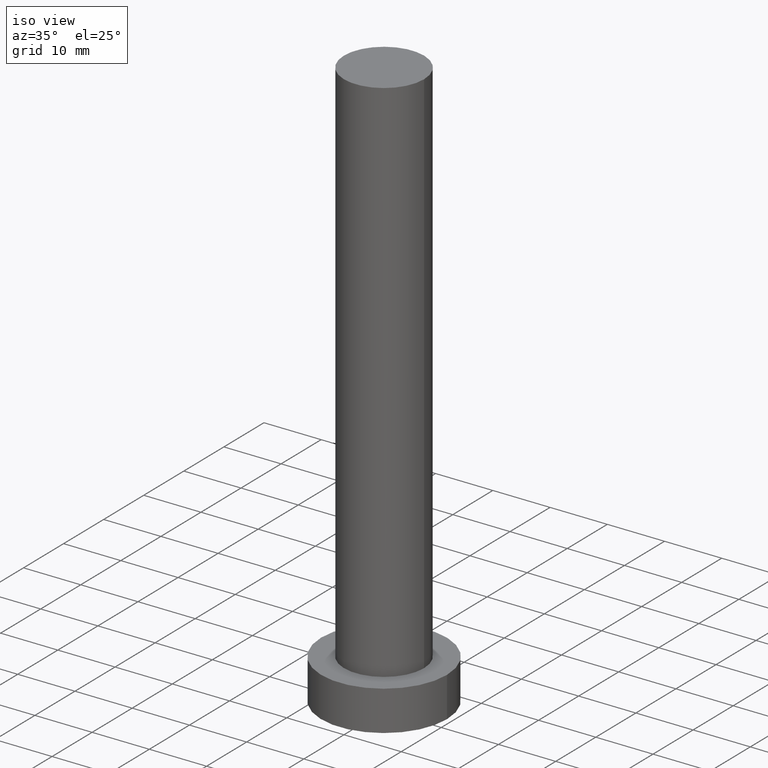
[diagram: clean part render]
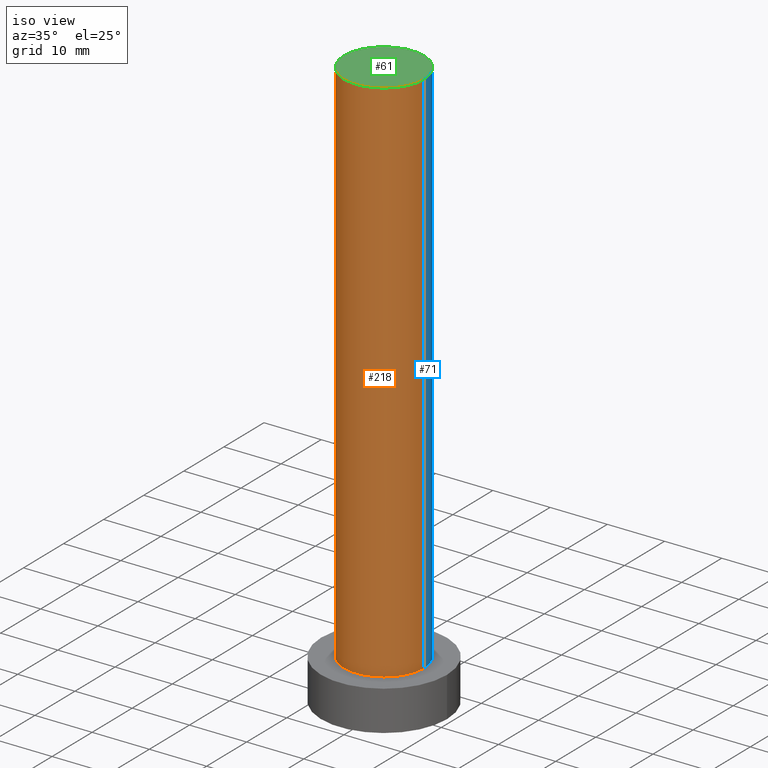
[diagram: same view with three faces highlighted in distinct colors, each labeled with its STEP entity id]
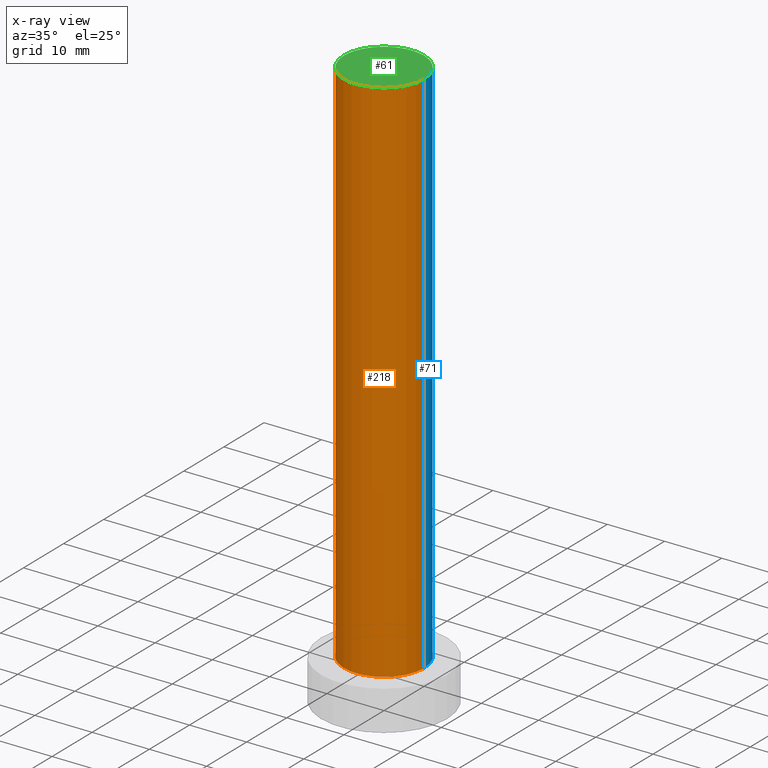
[diagram: x-ray of the same camera — body ghosted, the three highlighted faces saturated]
A machine part, iso view with three faces highlighted in distinct colors.
The next image is the same camera in x-ray (body ghosted, the three faces saturated) — at least one of them is partly hidden behind the body in this view.
Their STEP definitions:

[orange] entity #218 — the highlighted cylindrical surface (partial cylindrical patch) has radius 7 mm, axis along (-0, -0, -1).
#8 = CIRCLE ( 'NONE', #152, 7.000000000000000888 ) ;
#20 = CARTESIAN_POINT ( 'NONE',  ( 7.000000000000000888, 8.572527594031472204E-16, 100.0000000000000000 ) ) ;
#23 = AXIS2_PLACEMENT_3D ( 'NONE', #212, #37, #120 ) ;
#26 = VERTEX_POINT ( 'NONE', #190 ) ;
#33 = DIRECTION ( 'NONE',  ( -0.000000000000000000, -0.000000000000000000, -1.000000000000000000 ) ) ;
#37 = DIRECTION ( 'NONE',  ( -0.000000000000000000, -0.000000000000000000, -1.000000000000000000 ) ) ;
#49 = VERTEX_POINT ( 'NONE', #191 ) ;
#53 = AXIS2_PLACEMENT_3D ( 'NONE', #211, #73, #232 ) ;
#55 = LINE ( 'NONE', #206, #111 ) ;
#66 = VERTEX_POINT ( 'NONE', #142 ) ;
#73 = DIRECTION ( 'NONE',  ( 0.000000000000000000, 0.000000000000000000, 1.000000000000000000 ) ) ;
#78 = VECTOR ( 'NONE', #117, 1000.000000000000000 ) ;
#90 = EDGE_CURVE ( 'NONE', #66, #205, #207, .T. ) ;
#108 = EDGE_CURVE ( 'NONE', #205, #26, #155, .T. ) ;
#111 = VECTOR ( 'NONE', #33, 1000.000000000000000 ) ;
#117 = DIRECTION ( 'NONE',  ( -0.000000000000000000, -0.000000000000000000, -1.000000000000000000 ) ) ;
#119 = CARTESIAN_POINT ( 'NONE',  ( 7.000000000000000888, 8.572527594031472204E-16, 100.0000000000000000 ) ) ;
#120 = DIRECTION ( 'NONE',  ( -1.000000000000000000, 0.000000000000000000, 0.000000000000000000 ) ) ;
#122 = EDGE_CURVE ( 'NONE', #49, #26, #8, .T. ) ;
#125 = ORIENTED_EDGE ( 'NONE', *, *, #90, .F. ) ;
#130 = ORIENTED_EDGE ( 'NONE', *, *, #122, .T. ) ;
#131 = CARTESIAN_POINT ( 'NONE',  ( 0.000000000000000000, 0.000000000000000000, 7.000000000000000000 ) ) ;
#142 = CARTESIAN_POINT ( 'NONE',  ( -7.000000000000000888, 0.000000000000000000, 100.0000000000000000 ) ) ;
#152 = AXIS2_PLACEMENT_3D ( 'NONE', #131, #251, #204 ) ;
#153 = ORIENTED_EDGE ( 'NONE', *, *, #108, .F. ) ;
#155 = LINE ( 'NONE', #119, #78 ) ;
#158 = EDGE_CURVE ( 'NONE', #66, #49, #55, .T. ) ;
#177 = FACE_OUTER_BOUND ( 'NONE', #230, .T. ) ;
#190 = CARTESIAN_POINT ( 'NONE',  ( 7.000000000000000888, 8.572527594031472204E-16, 7.000000000000000000 ) ) ;
#191 = CARTESIAN_POINT ( 'NONE',  ( -7.000000000000000888, 0.000000000000000000, 7.000000000000000000 ) ) ;
#204 = DIRECTION ( 'NONE',  ( 1.000000000000000000, 0.000000000000000000, 0.000000000000000000 ) ) ;
#205 = VERTEX_POINT ( 'NONE', #20 ) ;
#206 = CARTESIAN_POINT ( 'NONE',  ( -7.000000000000000888, 0.000000000000000000, 100.0000000000000000 ) ) ;
#207 = CIRCLE ( 'NONE', #53, 7.000000000000000888 ) ;
#211 = CARTESIAN_POINT ( 'NONE',  ( 0.000000000000000000, 0.000000000000000000, 100.0000000000000000 ) ) ;
#212 = CARTESIAN_POINT ( 'NONE',  ( 0.000000000000000000, 0.000000000000000000, 100.0000000000000000 ) ) ;
#218 = ADVANCED_FACE ( 'NONE', ( #177 ), #235, .T. ) ;
#228 = ORIENTED_EDGE ( 'NONE', *, *, #158, .T. ) ;
#230 = EDGE_LOOP ( 'NONE', ( #153, #125, #228, #130 ) ) ;
#232 = DIRECTION ( 'NONE',  ( 1.000000000000000000, 0.000000000000000000, 0.000000000000000000 ) ) ;
#235 = CYLINDRICAL_SURFACE ( 'NONE', #23, 7.000000000000000888 ) ;
#251 = DIRECTION ( 'NONE',  ( 0.000000000000000000, 0.000000000000000000, 1.000000000000000000 ) ) ;

[blue] entity #71 — the highlighted cylindrical surface (partial cylindrical patch) has radius 7 mm, axis along (-0, -0, -1).
#4 = AXIS2_PLACEMENT_3D ( 'NONE', #173, #196, #80 ) ;
#6 = FACE_OUTER_BOUND ( 'NONE', #187, .T. ) ;
#10 = DIRECTION ( 'NONE',  ( 1.000000000000000000, 0.000000000000000000, 0.000000000000000000 ) ) ;
#18 = AXIS2_PLACEMENT_3D ( 'NONE', #42, #59, #197 ) ;
#19 = EDGE_CURVE ( 'NONE', #26, #49, #148, .T. ) ;
#20 = CARTESIAN_POINT ( 'NONE',  ( 7.000000000000000888, 8.572527594031472204E-16, 100.0000000000000000 ) ) ;
#26 = VERTEX_POINT ( 'NONE', #190 ) ;
#31 = ORIENTED_EDGE ( 'NONE', *, *, #158, .F. ) ;
#33 = DIRECTION ( 'NONE',  ( -0.000000000000000000, -0.000000000000000000, -1.000000000000000000 ) ) ;
#42 = CARTESIAN_POINT ( 'NONE',  ( 0.000000000000000000, 0.000000000000000000, 100.0000000000000000 ) ) ;
#49 = VERTEX_POINT ( 'NONE', #191 ) ;
#50 = CARTESIAN_POINT ( 'NONE',  ( 0.000000000000000000, 0.000000000000000000, 7.000000000000000000 ) ) ;
#55 = LINE ( 'NONE', #206, #111 ) ;
#59 = DIRECTION ( 'NONE',  ( -0.000000000000000000, -0.000000000000000000, -1.000000000000000000 ) ) ;
#66 = VERTEX_POINT ( 'NONE', #142 ) ;
#71 = ADVANCED_FACE ( 'NONE', ( #6 ), #216, .T. ) ;
#74 = ORIENTED_EDGE ( 'NONE', *, *, #19, .T. ) ;
#78 = VECTOR ( 'NONE', #117, 1000.000000000000000 ) ;
#80 = DIRECTION ( 'NONE',  ( 1.000000000000000000, 0.000000000000000000, 0.000000000000000000 ) ) ;
#96 = AXIS2_PLACEMENT_3D ( 'NONE', #50, #116, #10 ) ;
#107 = CIRCLE ( 'NONE', #4, 7.000000000000000888 ) ;
#108 = EDGE_CURVE ( 'NONE', #205, #26, #155, .T. ) ;
#111 = VECTOR ( 'NONE', #33, 1000.000000000000000 ) ;
#116 = DIRECTION ( 'NONE',  ( 0.000000000000000000, 0.000000000000000000, 1.000000000000000000 ) ) ;
#117 = DIRECTION ( 'NONE',  ( -0.000000000000000000, -0.000000000000000000, -1.000000000000000000 ) ) ;
#119 = CARTESIAN_POINT ( 'NONE',  ( 7.000000000000000888, 8.572527594031472204E-16, 100.0000000000000000 ) ) ;
#142 = CARTESIAN_POINT ( 'NONE',  ( -7.000000000000000888, 0.000000000000000000, 100.0000000000000000 ) ) ;
#148 = CIRCLE ( 'NONE', #96, 7.000000000000000888 ) ;
#155 = LINE ( 'NONE', #119, #78 ) ;
#158 = EDGE_CURVE ( 'NONE', #66, #49, #55, .T. ) ;
#173 = CARTESIAN_POINT ( 'NONE',  ( 0.000000000000000000, 0.000000000000000000, 100.0000000000000000 ) ) ;
#181 = EDGE_CURVE ( 'NONE', #205, #66, #107, .T. ) ;
#183 = ORIENTED_EDGE ( 'NONE', *, *, #108, .T. ) ;
#185 = ORIENTED_EDGE ( 'NONE', *, *, #181, .F. ) ;
#187 = EDGE_LOOP ( 'NONE', ( #185, #183, #74, #31 ) ) ;
#190 = CARTESIAN_POINT ( 'NONE',  ( 7.000000000000000888, 8.572527594031472204E-16, 7.000000000000000000 ) ) ;
#191 = CARTESIAN_POINT ( 'NONE',  ( -7.000000000000000888, 0.000000000000000000, 7.000000000000000000 ) ) ;
#196 = DIRECTION ( 'NONE',  ( 0.000000000000000000, 0.000000000000000000, 1.000000000000000000 ) ) ;
#197 = DIRECTION ( 'NONE',  ( -1.000000000000000000, 0.000000000000000000, 0.000000000000000000 ) ) ;
#205 = VERTEX_POINT ( 'NONE', #20 ) ;
#206 = CARTESIAN_POINT ( 'NONE',  ( -7.000000000000000888, 0.000000000000000000, 100.0000000000000000 ) ) ;
#216 = CYLINDRICAL_SURFACE ( 'NONE', #18, 7.000000000000000888 ) ;

[green] entity #61 — the highlighted planar face has unit normal (0, 0, 1).
#4 = AXIS2_PLACEMENT_3D ( 'NONE', #173, #196, #80 ) ;
#14 = ORIENTED_EDGE ( 'NONE', *, *, #181, .T. ) ;
#20 = CARTESIAN_POINT ( 'NONE',  ( 7.000000000000000888, 8.572527594031472204E-16, 100.0000000000000000 ) ) ;
#25 = AXIS2_PLACEMENT_3D ( 'NONE', #63, #68, #101 ) ;
#53 = AXIS2_PLACEMENT_3D ( 'NONE', #211, #73, #232 ) ;
#61 = ADVANCED_FACE ( 'NONE', ( #163 ), #245, .T. ) ;
#63 = CARTESIAN_POINT ( 'NONE',  ( 0.000000000000000000, 0.000000000000000000, 100.0000000000000000 ) ) ;
#66 = VERTEX_POINT ( 'NONE', #142 ) ;
#68 = DIRECTION ( 'NONE',  ( 0.000000000000000000, 0.000000000000000000, 1.000000000000000000 ) ) ;
#73 = DIRECTION ( 'NONE',  ( 0.000000000000000000, 0.000000000000000000, 1.000000000000000000 ) ) ;
#80 = DIRECTION ( 'NONE',  ( 1.000000000000000000, 0.000000000000000000, 0.000000000000000000 ) ) ;
#90 = EDGE_CURVE ( 'NONE', #66, #205, #207, .T. ) ;
#93 = ORIENTED_EDGE ( 'NONE', *, *, #90, .T. ) ;
#94 = EDGE_LOOP ( 'NONE', ( #93, #14 ) ) ;
#101 = DIRECTION ( 'NONE',  ( 1.000000000000000000, 0.000000000000000000, -0.000000000000000000 ) ) ;
#107 = CIRCLE ( 'NONE', #4, 7.000000000000000888 ) ;
#142 = CARTESIAN_POINT ( 'NONE',  ( -7.000000000000000888, 0.000000000000000000, 100.0000000000000000 ) ) ;
#163 = FACE_OUTER_BOUND ( 'NONE', #94, .T. ) ;
#173 = CARTESIAN_POINT ( 'NONE',  ( 0.000000000000000000, 0.000000000000000000, 100.0000000000000000 ) ) ;
#181 = EDGE_CURVE ( 'NONE', #205, #66, #107, .T. ) ;
#196 = DIRECTION ( 'NONE',  ( 0.000000000000000000, 0.000000000000000000, 1.000000000000000000 ) ) ;
#205 = VERTEX_POINT ( 'NONE', #20 ) ;
#207 = CIRCLE ( 'NONE', #53, 7.000000000000000888 ) ;
#211 = CARTESIAN_POINT ( 'NONE',  ( 0.000000000000000000, 0.000000000000000000, 100.0000000000000000 ) ) ;
#232 = DIRECTION ( 'NONE',  ( 1.000000000000000000, 0.000000000000000000, 0.000000000000000000 ) ) ;
#245 = PLANE ( 'NONE',  #25 ) ;